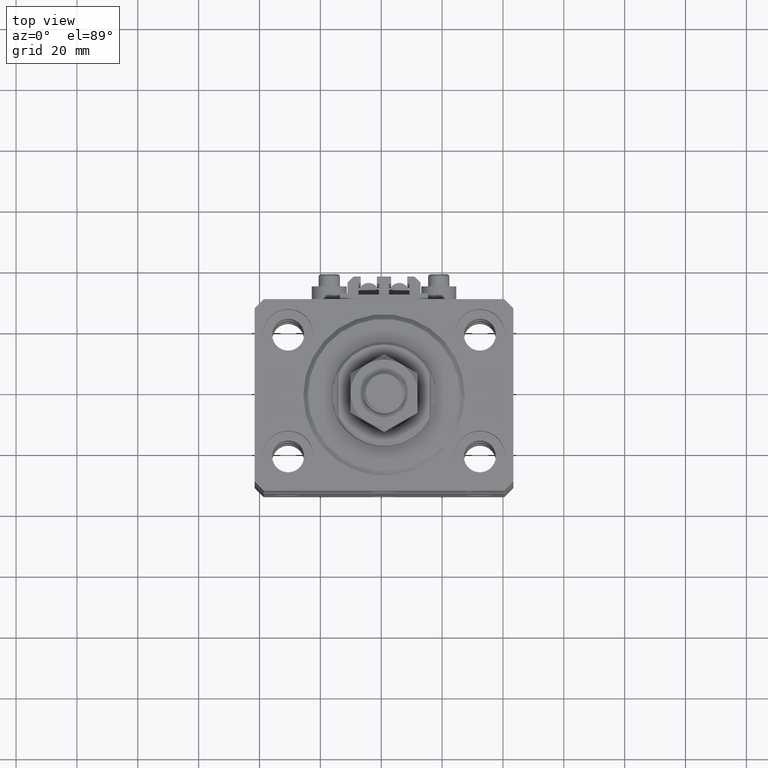
[diagram: clean part render]
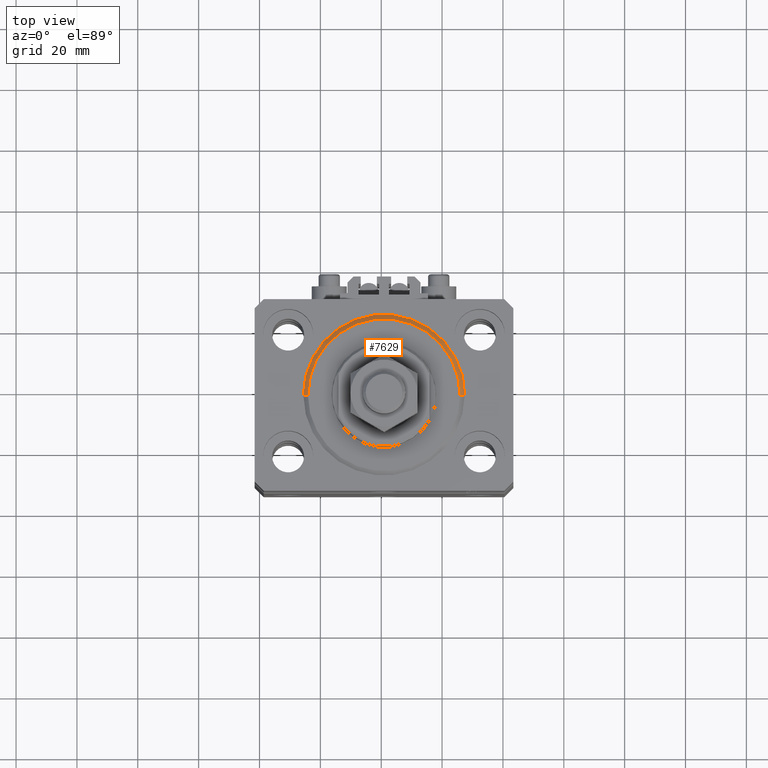
[diagram: same view with one face highlighted and labeled with its STEP entity id]
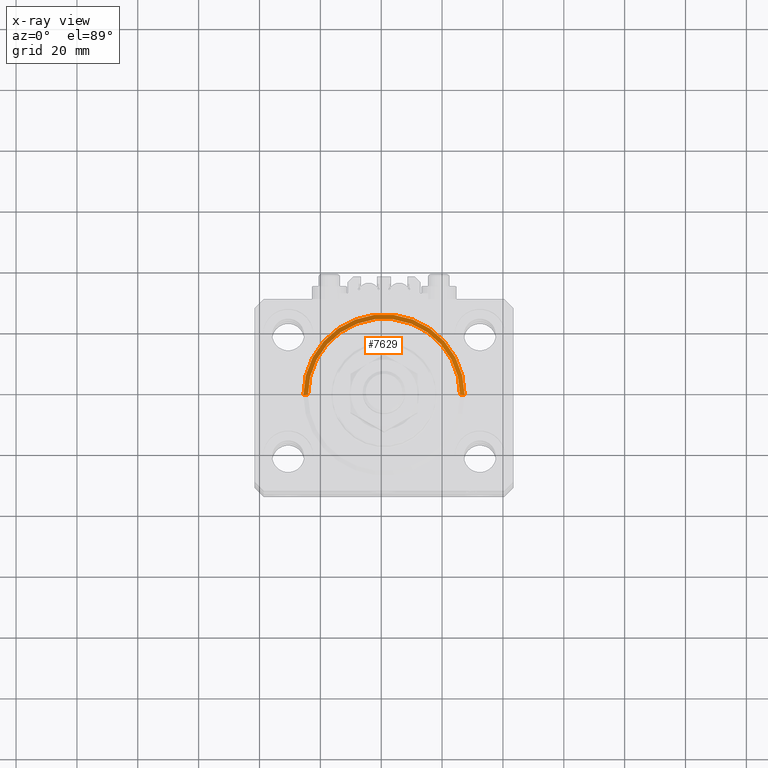
[diagram: x-ray of the same camera — body ghosted, the highlighted face saturated]
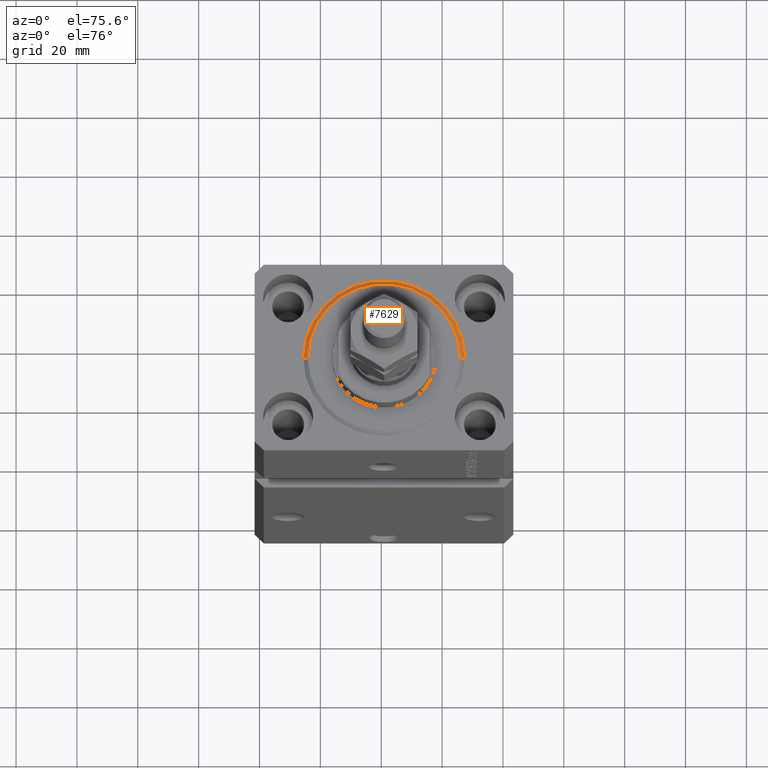
[diagram: same view with one face highlighted and labeled with its STEP entity id]
A machine part, top view. The second image highlights one B-rep face of the part: STEP entity #7629.
The next image is the same camera in x-ray: the body ghosted, the highlighted face saturated — about 0% of this face is hidden behind the body in this view.
A second angle (auxiliary view) of the same face is appended — the face is thin or edge-on in the first view.
In plain terms, the highlighted conical surface has half-angle 45 deg.
Its self-contained STEP definition (entity closure, byte-faithful):
#1580 = DIRECTION ( 'NONE',  ( 1.000000000000000000, 0.000000000000000000, 0.000000000000000000 ) ) ;
#1763 = EDGE_CURVE ( 'NONE', #19869, #38582, #31842, .T. ) ;
#3541 = DIRECTION ( 'NONE',  ( 0.7071067811865483499, 0.000000000000000000, 0.7071067811865466846 ) ) ;
#4424 = CIRCLE ( 'NONE', #24817, 24.99999999999998224 ) ;
#7629 = ADVANCED_FACE ( 'NONE', ( #31758 ), #48222, .T. ) ;
#7934 = ORIENTED_EDGE ( 'NONE', *, *, #18237, .F. ) ;
#8344 = CARTESIAN_POINT ( 'NONE',  ( -26.50000000000000355, 0.000000000000000000, 1.500000000000018652 ) ) ;
#10119 = CARTESIAN_POINT ( 'NONE',  ( -26.50000000000000355, 3.245314017740486554E-15, 1.500000000000018652 ) ) ;
#10680 = VERTEX_POINT ( 'NONE', #36164 ) ;
#13935 = EDGE_LOOP ( 'NONE', ( #7934, #43276, #16685, #45266 ) ) ;
#15959 = CARTESIAN_POINT ( 'NONE',  ( 0.000000000000000000, 0.000000000000000000, 1.500000000000018652 ) ) ;
#16071 = LINE ( 'NONE', #31660, #44411 ) ;
#16685 = ORIENTED_EDGE ( 'NONE', *, *, #1763, .F. ) ;
#17950 = AXIS2_PLACEMENT_3D ( 'NONE', #15959, #47101, #32814 ) ;
#18237 = EDGE_CURVE ( 'NONE', #40470, #10680, #4424, .T. ) ;
#18567 = CARTESIAN_POINT ( 'NONE',  ( 26.50000000000000355, 3.245314017740486554E-15, 1.500000000000018652 ) ) ;
#19869 = VERTEX_POINT ( 'NONE', #18567 ) ;
#21621 = DIRECTION ( 'NONE',  ( -0.7071067811865483499, 8.659560562354942719E-17, 0.7071067811865466846 ) ) ;
#21863 = LINE ( 'NONE', #10119, #27663 ) ;
#21869 = EDGE_CURVE ( 'NONE', #10680, #19869, #16071, .T. ) ;
#22699 = DIRECTION ( 'NONE',  ( -0.000000000000000000, -0.000000000000000000, -1.000000000000000000 ) ) ;
#24817 = AXIS2_PLACEMENT_3D ( 'NONE', #26791, #22699, #42881 ) ;
#26791 = CARTESIAN_POINT ( 'NONE',  ( 0.000000000000000000, 0.000000000000000000, 0.000000000000000000 ) ) ;
#27663 = VECTOR ( 'NONE', #21621, 1000.000000000000000 ) ;
#31660 = CARTESIAN_POINT ( 'NONE',  ( 26.50000000000000355, 0.000000000000000000, 1.500000000000018652 ) ) ;
#31758 = FACE_OUTER_BOUND ( 'NONE', #13935, .T. ) ;
#31842 = CIRCLE ( 'NONE', #17950, 26.50000000000000355 ) ;
#32765 = DIRECTION ( 'NONE',  ( -0.000000000000000000, -0.000000000000000000, 1.000000000000000000 ) ) ;
#32814 = DIRECTION ( 'NONE',  ( 1.000000000000000000, 0.000000000000000000, 0.000000000000000000 ) ) ;
#36164 = CARTESIAN_POINT ( 'NONE',  ( 24.99999999999998224, 0.000000000000000000, 0.000000000000000000 ) ) ;
#37592 = CARTESIAN_POINT ( 'NONE',  ( -24.99999999999998224, 3.153465507804433615E-15, 0.000000000000000000 ) ) ;
#38440 = AXIS2_PLACEMENT_3D ( 'NONE', #47312, #32765, #1580 ) ;
#38582 = VERTEX_POINT ( 'NONE', #8344 ) ;
#40470 = VERTEX_POINT ( 'NONE', #37592 ) ;
#42806 = EDGE_CURVE ( 'NONE', #40470, #38582, #21863, .T. ) ;
#42881 = DIRECTION ( 'NONE',  ( 1.000000000000000000, 0.000000000000000000, 0.000000000000000000 ) ) ;
#43276 = ORIENTED_EDGE ( 'NONE', *, *, #42806, .T. ) ;
#44411 = VECTOR ( 'NONE', #3541, 1000.000000000000000 ) ;
#45266 = ORIENTED_EDGE ( 'NONE', *, *, #21869, .F. ) ;
#47101 = DIRECTION ( 'NONE',  ( -0.000000000000000000, -0.000000000000000000, 1.000000000000000000 ) ) ;
#47312 = CARTESIAN_POINT ( 'NONE',  ( 0.000000000000000000, 0.000000000000000000, 1.500000000000018652 ) ) ;
#48222 = CONICAL_SURFACE ( 'NONE', #38440, 26.50000000000000355, 0.7853981633974495002 ) ;